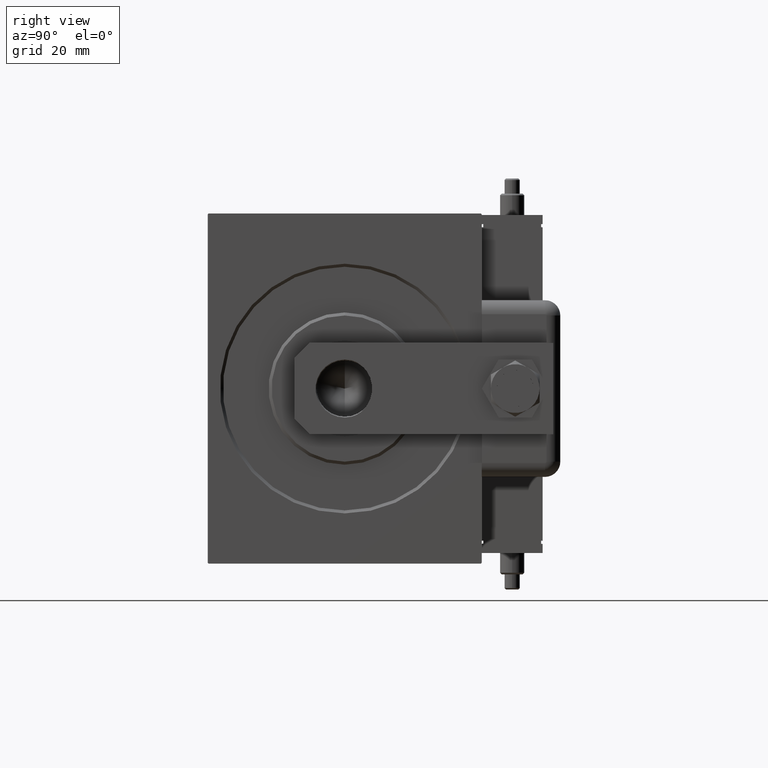
[diagram: clean part render]
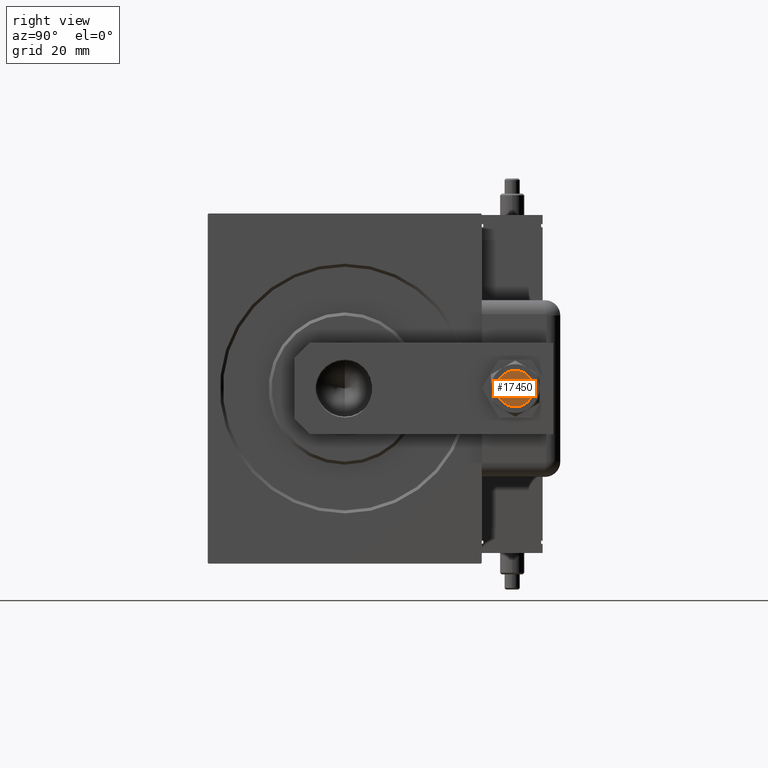
[diagram: same view with one face highlighted and labeled with its STEP entity id]
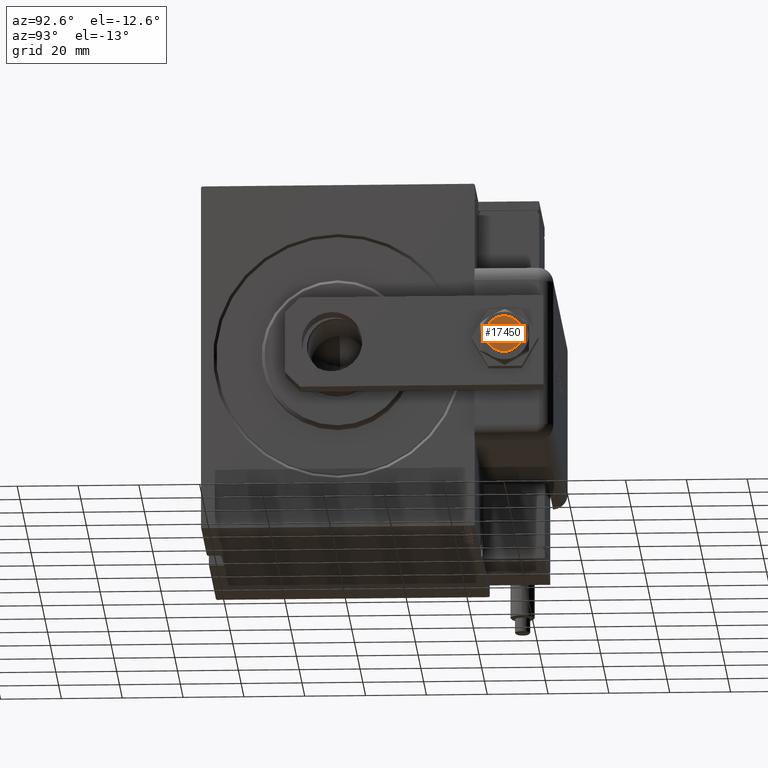
[diagram: same view with one face highlighted and labeled with its STEP entity id]
A machine part, right view. The second image highlights one B-rep face of the part: STEP entity #17450.
A second angle (auxiliary view) of the same face is appended — the face is thin or edge-on in the first view.
In plain terms, the highlighted planar face has unit normal (1, 0, 0).
Its self-contained STEP definition (entity closure, byte-faithful):
#159 = ORIENTED_EDGE ( 'NONE', *, *, #8099, .T. ) ;
#4857 = CARTESIAN_POINT ( 'NONE',  ( 0.000000000000000000, 0.000000000000000000, -28.00000000000000000 ) ) ;
#6908 = ORIENTED_EDGE ( 'NONE', *, *, #35422, .T. ) ;
#7726 = CARTESIAN_POINT ( 'NONE',  ( 0.000000000000000000, 0.000000000000000000, -28.00000000000000000 ) ) ;
#8015 = DIRECTION ( 'NONE',  ( -1.000000000000000000, 0.000000000000000000, 0.000000000000000000 ) ) ;
#8099 = EDGE_CURVE ( 'NONE', #39576, #23813, #20667, .T. ) ;
#9778 = DIRECTION ( 'NONE',  ( -1.000000000000000000, 0.000000000000000000, -0.000000000000000000 ) ) ;
#14338 = CARTESIAN_POINT ( 'NONE',  ( 0.000000000000000000, 0.000000000000000000, -28.00000000000000000 ) ) ;
#15462 = CIRCLE ( 'NONE', #29087, 6.000000000000000888 ) ;
#17450 = ADVANCED_FACE ( 'NONE', ( #18897 ), #37503, .T. ) ;
#18897 = FACE_OUTER_BOUND ( 'NONE', #25590, .T. ) ;
#19296 = CARTESIAN_POINT ( 'NONE',  ( 6.000000000000000888, 0.000000000000000000, -28.00000000000000000 ) ) ;
#20667 = CIRCLE ( 'NONE', #42078, 6.000000000000000888 ) ;
#23813 = VERTEX_POINT ( 'NONE', #19296 ) ;
#25590 = EDGE_LOOP ( 'NONE', ( #6908, #159 ) ) ;
#27696 = DIRECTION ( 'NONE',  ( 0.000000000000000000, 0.000000000000000000, -1.000000000000000000 ) ) ;
#29087 = AXIS2_PLACEMENT_3D ( 'NONE', #4857, #27696, #51756 ) ;
#34858 = DIRECTION ( 'NONE',  ( 0.000000000000000000, 0.000000000000000000, -1.000000000000000000 ) ) ;
#35422 = EDGE_CURVE ( 'NONE', #23813, #39576, #15462, .T. ) ;
#37503 = PLANE ( 'NONE',  #41355 ) ;
#39576 = VERTEX_POINT ( 'NONE', #50657 ) ;
#41355 = AXIS2_PLACEMENT_3D ( 'NONE', #14338, #60030, #9778 ) ;
#42078 = AXIS2_PLACEMENT_3D ( 'NONE', #7726, #34858, #8015 ) ;
#50657 = CARTESIAN_POINT ( 'NONE',  ( -6.000000000000000888, 7.347880794884120722E-16, -28.00000000000000000 ) ) ;
#51756 = DIRECTION ( 'NONE',  ( -1.000000000000000000, 0.000000000000000000, 0.000000000000000000 ) ) ;
#60030 = DIRECTION ( 'NONE',  ( 0.000000000000000000, 0.000000000000000000, -1.000000000000000000 ) ) ;